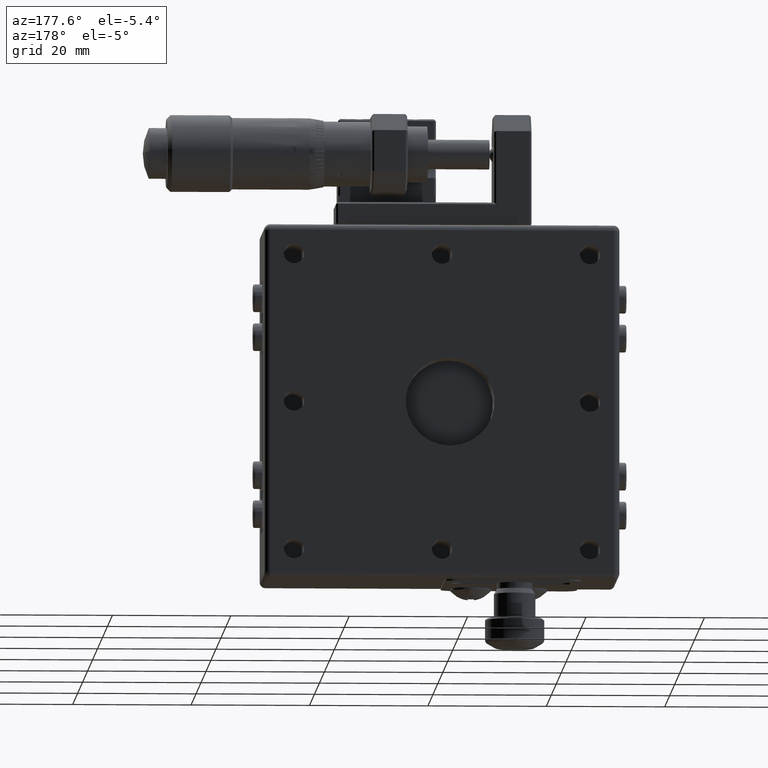
[diagram: clean part render]
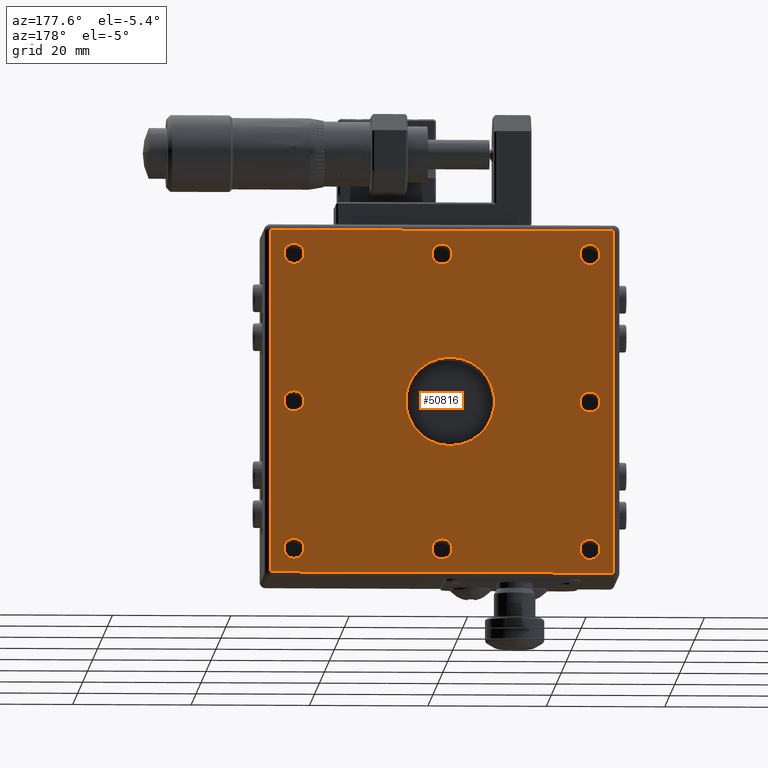
[diagram: same view with one face highlighted and labeled with its STEP entity id]
A machine part, auxiliary view. The second image highlights one B-rep face of the part: STEP entity #50816.
In plain terms, the highlighted planar face has unit normal (0, -1, 0).
Its self-contained STEP definition (entity closure, byte-faithful):
#137 = CIRCLE ( 'NONE', #49938, 1.700000000000000178 ) ;
#349 = CARTESIAN_POINT ( 'NONE',  ( -23.62646566164155004, 9.605938034382809576, 25.00000000000000000 ) ) ;
#635 = DIRECTION ( 'NONE',  ( 0.000000000000000000, 0.000000000000000000, 1.000000000000000000 ) ) ;
#707 = AXIS2_PLACEMENT_3D ( 'NONE', #32310, #15059, #11975 ) ;
#918 = EDGE_CURVE ( 'NONE', #54437, #23549, #35971, .T. ) ;
#1189 = EDGE_CURVE ( 'NONE', #39811, #23739, #15552, .T. ) ;
#1271 = DIRECTION ( 'NONE',  ( 0.000000000000000000, 1.000000000000000000, 0.000000000000000000 ) ) ;
#1383 = CIRCLE ( 'NONE', #50274, 1.699999999999999956 ) ;
#1994 = CARTESIAN_POINT ( 'NONE',  ( 26.37353433835844996, 9.605938034382809576, 25.00000000000000000 ) ) ;
#2213 = EDGE_LOOP ( 'NONE', ( #34079, #38361 ) ) ;
#2896 = VECTOR ( 'NONE', #35086, 1000.000000000000000 ) ;
#3027 = AXIS2_PLACEMENT_3D ( 'NONE', #349, #51854, #635 ) ;
#3776 = EDGE_LOOP ( 'NONE', ( #41812, #49340 ) ) ;
#4143 = EDGE_CURVE ( 'NONE', #20505, #16478, #21745, .T. ) ;
#4193 = EDGE_CURVE ( 'NONE', #13264, #23536, #22354, .T. ) ;
#4675 = ORIENTED_EDGE ( 'NONE', *, *, #24128, .F. ) ;
#4713 = CARTESIAN_POINT ( 'NONE',  ( -23.62646566164155004, 9.605938034382809576, 25.00000000000000000 ) ) ;
#4808 = DIRECTION ( 'NONE',  ( 0.000000000000000000, 0.000000000000000000, -1.000000000000000000 ) ) ;
#5446 = CARTESIAN_POINT ( 'NONE',  ( -27.62646566164155004, 9.605938034382809576, -29.00000000000000000 ) ) ;
#6014 = DIRECTION ( 'NONE',  ( 0.000000000000000000, 0.000000000000000000, 1.000000000000000000 ) ) ;
#6198 = DIRECTION ( 'NONE',  ( 0.000000000000000000, 1.000000000000000000, 0.000000000000000000 ) ) ;
#6304 = FACE_BOUND ( 'NONE', #3776, .T. ) ;
#6330 = AXIS2_PLACEMENT_3D ( 'NONE', #39413, #1271, #14332 ) ;
#6737 = DIRECTION ( 'NONE',  ( 0.000000000000000000, 1.000000000000000000, 0.000000000000000000 ) ) ;
#6760 = DIRECTION ( 'NONE',  ( 0.000000000000000000, 1.000000000000000000, 0.000000000000000000 ) ) ;
#7099 = ORIENTED_EDGE ( 'NONE', *, *, #28105, .F. ) ;
#7270 = CARTESIAN_POINT ( 'NONE',  ( -23.62646566164155004, 9.605938034382809576, -25.00000000000000000 ) ) ;
#7285 = VERTEX_POINT ( 'NONE', #53788 ) ;
#7302 = CARTESIAN_POINT ( 'NONE',  ( 26.37353433835844996, 9.605938034382809576, -7.423069874656028408E-15 ) ) ;
#7761 = ORIENTED_EDGE ( 'NONE', *, *, #43256, .F. ) ;
#8093 = VERTEX_POINT ( 'NONE', #46859 ) ;
#8469 = CARTESIAN_POINT ( 'NONE',  ( 26.37353433835844996, 9.605938034382809576, 23.30000000000000071 ) ) ;
#9800 = DIRECTION ( 'NONE',  ( 0.000000000000000000, 0.000000000000000000, 1.000000000000000000 ) ) ;
#9849 = CARTESIAN_POINT ( 'NONE',  ( -23.62646566164155004, 9.605938034382809576, -7.423069874656028408E-15 ) ) ;
#9955 = CIRCLE ( 'NONE', #26871, 1.700000000000000178 ) ;
#10005 = LINE ( 'NONE', #10289, #2896 ) ;
#10104 = CARTESIAN_POINT ( 'NONE',  ( -23.62646566164155004, 9.605938034382809576, -25.00000000000000000 ) ) ;
#10258 = CARTESIAN_POINT ( 'NONE',  ( -23.62646566164155004, 9.605938034382809576, -1.699999999999999956 ) ) ;
#10289 = CARTESIAN_POINT ( 'NONE',  ( -27.62646566164155004, 9.605938034382809576, 30.00000000000000000 ) ) ;
#11191 = ORIENTED_EDGE ( 'NONE', *, *, #12231, .F. ) ;
#11264 = AXIS2_PLACEMENT_3D ( 'NONE', #35788, #52491, #6014 ) ;
#11950 = AXIS2_PLACEMENT_3D ( 'NONE', #9849, #14044, #22692 ) ;
#11975 = DIRECTION ( 'NONE',  ( 0.000000000000000000, 0.000000000000000000, 1.000000000000000000 ) ) ;
#12026 = CIRCLE ( 'NONE', #22716, 1.700000000000000178 ) ;
#12031 = CARTESIAN_POINT ( 'NONE',  ( -23.62646566164155004, 9.605938034382809576, -23.30000000000000071 ) ) ;
#12080 = DIRECTION ( 'NONE',  ( 0.000000000000000000, 1.000000000000000000, 0.000000000000000000 ) ) ;
#12231 = EDGE_CURVE ( 'NONE', #22247, #17106, #51067, .T. ) ;
#13067 = VERTEX_POINT ( 'NONE', #18266 ) ;
#13074 = DIRECTION ( 'NONE',  ( 0.000000000000000000, 1.000000000000000000, 0.000000000000000000 ) ) ;
#13264 = VERTEX_POINT ( 'NONE', #54113 ) ;
#13382 = EDGE_CURVE ( 'NONE', #53403, #29475, #12026, .T. ) ;
#13578 = FACE_BOUND ( 'NONE', #31570, .T. ) ;
#13881 = EDGE_CURVE ( 'NONE', #23549, #54437, #44948, .T. ) ;
#13891 = ORIENTED_EDGE ( 'NONE', *, *, #918, .F. ) ;
#13944 = DIRECTION ( 'NONE',  ( 1.000000000000000000, 0.000000000000000000, 0.000000000000000000 ) ) ;
#14044 = DIRECTION ( 'NONE',  ( 0.000000000000000000, 1.000000000000000000, 0.000000000000000000 ) ) ;
#14332 = DIRECTION ( 'NONE',  ( 0.000000000000000000, 0.000000000000000000, 1.000000000000000000 ) ) ;
#14415 = EDGE_LOOP ( 'NONE', ( #30930, #23203, #24780, #45045 ) ) ;
#14619 = EDGE_CURVE ( 'NONE', #17757, #44976, #20997, .T. ) ;
#14628 = CARTESIAN_POINT ( 'NONE',  ( -23.62646566164155004, 9.605938034382809576, 26.70000000000000284 ) ) ;
#14695 = DIRECTION ( 'NONE',  ( 0.000000000000000000, 0.000000000000000000, 1.000000000000000000 ) ) ;
#15059 = DIRECTION ( 'NONE',  ( 0.000000000000000000, 1.000000000000000000, 0.000000000000000000 ) ) ;
#15552 = CIRCLE ( 'NONE', #52862, 1.699999999999999956 ) ;
#16127 = VERTEX_POINT ( 'NONE', #23602 ) ;
#16138 = EDGE_LOOP ( 'NONE', ( #4675, #35613 ) ) ;
#16367 = DIRECTION ( 'NONE',  ( 0.000000000000000000, 1.000000000000000000, 0.000000000000000000 ) ) ;
#16478 = VERTEX_POINT ( 'NONE', #14628 ) ;
#16673 = AXIS2_PLACEMENT_3D ( 'NONE', #32220, #49194, #14695 ) ;
#16712 = CIRCLE ( 'NONE', #27414, 1.700000000000000178 ) ;
#17106 = VERTEX_POINT ( 'NONE', #12031 ) ;
#17450 = AXIS2_PLACEMENT_3D ( 'NONE', #35908, #22582, #39559 ) ;
#17757 = VERTEX_POINT ( 'NONE', #38397 ) ;
#18266 = CARTESIAN_POINT ( 'NONE',  ( 26.37353433835844996, 9.605938034382809576, -26.70000000000000284 ) ) ;
#18273 = CIRCLE ( 'NONE', #39620, 1.700000000000000178 ) ;
#18290 = EDGE_CURVE ( 'NONE', #29475, #53403, #16712, .T. ) ;
#18547 = EDGE_CURVE ( 'NONE', #30800, #13264, #31182, .T. ) ;
#18599 = DIRECTION ( 'NONE',  ( 0.000000000000000000, 0.000000000000000000, 1.000000000000000000 ) ) ;
#18711 = DIRECTION ( 'NONE',  ( 0.000000000000000000, 1.000000000000000000, 0.000000000000000000 ) ) ;
#19413 = CARTESIAN_POINT ( 'NONE',  ( 1.373534338358459950, 9.605938034382809576, -25.00000000000000000 ) ) ;
#19539 = DIRECTION ( 'NONE',  ( 0.000000000000000000, 0.000000000000000000, 1.000000000000000000 ) ) ;
#19689 = ORIENTED_EDGE ( 'NONE', *, *, #53219, .F. ) ;
#19768 = CARTESIAN_POINT ( 'NONE',  ( 26.37353433835844996, 9.605938034382809576, 1.699999999999999956 ) ) ;
#19866 = EDGE_CURVE ( 'NONE', #42860, #7285, #50463, .T. ) ;
#20008 = CARTESIAN_POINT ( 'NONE',  ( 30.37353433835844996, 9.605938034382809576, -29.00000000000000000 ) ) ;
#20320 = VECTOR ( 'NONE', #13944, 1000.000000000000000 ) ;
#20505 = VERTEX_POINT ( 'NONE', #26572 ) ;
#20842 = EDGE_CURVE ( 'NONE', #23739, #39811, #1383, .T. ) ;
#20997 = CIRCLE ( 'NONE', #17450, 1.700000000000000178 ) ;
#21682 = DIRECTION ( 'NONE',  ( -1.000000000000000000, 0.000000000000000000, 0.000000000000000000 ) ) ;
#21745 = CIRCLE ( 'NONE', #3027, 1.700000000000000178 ) ;
#21903 = ORIENTED_EDGE ( 'NONE', *, *, #23612, .F. ) ;
#22247 = VERTEX_POINT ( 'NONE', #46494 ) ;
#22354 = LINE ( 'NONE', #22637, #45729 ) ;
#22385 = DIRECTION ( 'NONE',  ( 0.000000000000000000, 0.000000000000000000, 1.000000000000000000 ) ) ;
#22582 = DIRECTION ( 'NONE',  ( 0.000000000000000000, 1.000000000000000000, 0.000000000000000000 ) ) ;
#22616 = DIRECTION ( 'NONE',  ( 0.000000000000000000, 1.000000000000000000, 0.000000000000000000 ) ) ;
#22637 = CARTESIAN_POINT ( 'NONE',  ( 30.37353433835844996, 9.605938034382809576, -30.00000000000000000 ) ) ;
#22692 = DIRECTION ( 'NONE',  ( 0.000000000000000000, 0.000000000000000000, 1.000000000000000000 ) ) ;
#22716 = AXIS2_PLACEMENT_3D ( 'NONE', #28798, #12080, #29085 ) ;
#22788 = PLANE ( 'NONE',  #32280 ) ;
#23203 = ORIENTED_EDGE ( 'NONE', *, *, #18547, .T. ) ;
#23467 = ORIENTED_EDGE ( 'NONE', *, *, #33670, .F. ) ;
#23536 = VERTEX_POINT ( 'NONE', #20008 ) ;
#23549 = VERTEX_POINT ( 'NONE', #33625 ) ;
#23602 = CARTESIAN_POINT ( 'NONE',  ( 1.373534338358459950, 9.605938034382809576, 26.70000000000000284 ) ) ;
#23612 = EDGE_CURVE ( 'NONE', #7285, #42860, #26191, .T. ) ;
#23739 = VERTEX_POINT ( 'NONE', #19768 ) ;
#24128 = EDGE_CURVE ( 'NONE', #16478, #20505, #9955, .T. ) ;
#24296 = DIRECTION ( 'NONE',  ( 0.000000000000000000, 0.000000000000000000, 1.000000000000000000 ) ) ;
#24444 = EDGE_LOOP ( 'NONE', ( #35328, #13891 ) ) ;
#24780 = ORIENTED_EDGE ( 'NONE', *, *, #4193, .T. ) ;
#25036 = CIRCLE ( 'NONE', #6330, 1.700000000000000178 ) ;
#26191 = CIRCLE ( 'NONE', #33285, 7.500000000000000000 ) ;
#26572 = CARTESIAN_POINT ( 'NONE',  ( -23.62646566164155004, 9.605938034382809576, 23.30000000000000071 ) ) ;
#26674 = FACE_BOUND ( 'NONE', #30667, .T. ) ;
#26871 = AXIS2_PLACEMENT_3D ( 'NONE', #4713, #13074, #30318 ) ;
#27414 = AXIS2_PLACEMENT_3D ( 'NONE', #1994, #6737, #19539 ) ;
#27614 = EDGE_CURVE ( 'NONE', #23536, #52902, #30577, .T. ) ;
#27811 = EDGE_CURVE ( 'NONE', #44976, #17757, #137, .T. ) ;
#28105 = EDGE_CURVE ( 'NONE', #16127, #8093, #25036, .T. ) ;
#28673 = EDGE_LOOP ( 'NONE', ( #7099, #23467 ) ) ;
#28798 = CARTESIAN_POINT ( 'NONE',  ( 26.37353433835844996, 9.605938034382809576, 25.00000000000000000 ) ) ;
#29085 = DIRECTION ( 'NONE',  ( 0.000000000000000000, 0.000000000000000000, 1.000000000000000000 ) ) ;
#29475 = VERTEX_POINT ( 'NONE', #8469 ) ;
#30318 = DIRECTION ( 'NONE',  ( 0.000000000000000000, 0.000000000000000000, 1.000000000000000000 ) ) ;
#30559 = EDGE_LOOP ( 'NONE', ( #7761, #43381 ) ) ;
#30573 = DIRECTION ( 'NONE',  ( 0.000000000000000000, -1.000000000000000000, 0.000000000000000000 ) ) ;
#30577 = LINE ( 'NONE', #47570, #38382 ) ;
#30667 = EDGE_LOOP ( 'NONE', ( #21903, #51882 ) ) ;
#30800 = VERTEX_POINT ( 'NONE', #47449 ) ;
#30855 = FACE_BOUND ( 'NONE', #2213, .T. ) ;
#30930 = ORIENTED_EDGE ( 'NONE', *, *, #49740, .T. ) ;
#30959 = CARTESIAN_POINT ( 'NONE',  ( 26.37353433835844996, 9.605938034382809576, -7.423069874656028408E-15 ) ) ;
#31112 = FACE_BOUND ( 'NONE', #30559, .T. ) ;
#31182 = LINE ( 'NONE', #52083, #20320 ) ;
#31570 = EDGE_LOOP ( 'NONE', ( #19689, #11191 ) ) ;
#32220 = CARTESIAN_POINT ( 'NONE',  ( 0.000000000000000000, 9.605938034382809576, 0.000000000000000000 ) ) ;
#32280 = AXIS2_PLACEMENT_3D ( 'NONE', #52010, #30573, #51723 ) ;
#32287 = CIRCLE ( 'NONE', #34082, 1.700000000000000178 ) ;
#32310 = CARTESIAN_POINT ( 'NONE',  ( 26.37353433835844996, 9.605938034382809576, -25.00000000000000000 ) ) ;
#32337 = DIRECTION ( 'NONE',  ( 0.000000000000000000, 0.000000000000000000, 1.000000000000000000 ) ) ;
#33037 = VERTEX_POINT ( 'NONE', #52938 ) ;
#33285 = AXIS2_PLACEMENT_3D ( 'NONE', #54489, #16367, #33348 ) ;
#33348 = DIRECTION ( 'NONE',  ( 0.000000000000000000, 0.000000000000000000, 1.000000000000000000 ) ) ;
#33455 = ORIENTED_EDGE ( 'NONE', *, *, #14619, .F. ) ;
#33614 = CIRCLE ( 'NONE', #707, 1.700000000000000178 ) ;
#33625 = CARTESIAN_POINT ( 'NONE',  ( -23.62646566164155004, 9.605938034382809576, 1.699999999999999956 ) ) ;
#33670 = EDGE_CURVE ( 'NONE', #8093, #16127, #40655, .T. ) ;
#34079 = ORIENTED_EDGE ( 'NONE', *, *, #13382, .F. ) ;
#34082 = AXIS2_PLACEMENT_3D ( 'NONE', #47966, #18711, #9800 ) ;
#34573 = CARTESIAN_POINT ( 'NONE',  ( 26.37353433835844996, 9.605938034382809576, 26.70000000000000284 ) ) ;
#34741 = FACE_BOUND ( 'NONE', #46008, .T. ) ;
#35086 = DIRECTION ( 'NONE',  ( 0.000000000000000000, 0.000000000000000000, 1.000000000000000000 ) ) ;
#35182 = EDGE_CURVE ( 'NONE', #13067, #33037, #33614, .T. ) ;
#35274 = CARTESIAN_POINT ( 'NONE',  ( 26.37353433835844996, 9.605938034382809576, -1.699999999999999956 ) ) ;
#35328 = ORIENTED_EDGE ( 'NONE', *, *, #13881, .F. ) ;
#35613 = ORIENTED_EDGE ( 'NONE', *, *, #4143, .F. ) ;
#35788 = CARTESIAN_POINT ( 'NONE',  ( 1.373534338358459950, 9.605938034382809576, 25.00000000000000000 ) ) ;
#35842 = CARTESIAN_POINT ( 'NONE',  ( -23.62646566164155004, 9.605938034382809576, -7.423069874656028408E-15 ) ) ;
#35908 = CARTESIAN_POINT ( 'NONE',  ( 1.373534338358459950, 9.605938034382809576, -25.00000000000000000 ) ) ;
#35971 = CIRCLE ( 'NONE', #11950, 1.699999999999999956 ) ;
#38361 = ORIENTED_EDGE ( 'NONE', *, *, #18290, .F. ) ;
#38382 = VECTOR ( 'NONE', #21682, 1000.000000000000000 ) ;
#38397 = CARTESIAN_POINT ( 'NONE',  ( 1.373534338358459950, 9.605938034382809576, -23.30000000000000071 ) ) ;
#39413 = CARTESIAN_POINT ( 'NONE',  ( 1.373534338358459950, 9.605938034382809576, 25.00000000000000000 ) ) ;
#39475 = FACE_BOUND ( 'NONE', #28673, .T. ) ;
#39559 = DIRECTION ( 'NONE',  ( 0.000000000000000000, 0.000000000000000000, 1.000000000000000000 ) ) ;
#39620 = AXIS2_PLACEMENT_3D ( 'NONE', #10104, #6198, #22385 ) ;
#39811 = VERTEX_POINT ( 'NONE', #35274 ) ;
#40655 = CIRCLE ( 'NONE', #11264, 1.700000000000000178 ) ;
#41812 = ORIENTED_EDGE ( 'NONE', *, *, #20842, .F. ) ;
#42169 = AXIS2_PLACEMENT_3D ( 'NONE', #7270, #45423, #32337 ) ;
#42860 = VERTEX_POINT ( 'NONE', #48952 ) ;
#43256 = EDGE_CURVE ( 'NONE', #33037, #13067, #32287, .T. ) ;
#43381 = ORIENTED_EDGE ( 'NONE', *, *, #35182, .F. ) ;
#43647 = FACE_BOUND ( 'NONE', #24444, .T. ) ;
#44948 = CIRCLE ( 'NONE', #49394, 1.699999999999999956 ) ;
#44976 = VERTEX_POINT ( 'NONE', #45974 ) ;
#45038 = DIRECTION ( 'NONE',  ( 0.000000000000000000, 0.000000000000000000, 1.000000000000000000 ) ) ;
#45045 = ORIENTED_EDGE ( 'NONE', *, *, #27614, .T. ) ;
#45423 = DIRECTION ( 'NONE',  ( 0.000000000000000000, 1.000000000000000000, 0.000000000000000000 ) ) ;
#45729 = VECTOR ( 'NONE', #4808, 1000.000000000000000 ) ;
#45974 = CARTESIAN_POINT ( 'NONE',  ( 1.373534338358459950, 9.605938034382809576, -26.70000000000000284 ) ) ;
#46008 = EDGE_LOOP ( 'NONE', ( #33455, #50780 ) ) ;
#46494 = CARTESIAN_POINT ( 'NONE',  ( -23.62646566164155004, 9.605938034382809576, -26.70000000000000284 ) ) ;
#46859 = CARTESIAN_POINT ( 'NONE',  ( 1.373534338358459950, 9.605938034382809576, 23.30000000000000071 ) ) ;
#47449 = CARTESIAN_POINT ( 'NONE',  ( -27.62646566164155004, 9.605938034382809576, 29.00000000000000000 ) ) ;
#47565 = FACE_BOUND ( 'NONE', #16138, .T. ) ;
#47570 = CARTESIAN_POINT ( 'NONE',  ( 31.37353433835844640, 9.605938034382809576, -29.00000000000000000 ) ) ;
#47948 = DIRECTION ( 'NONE',  ( 0.000000000000000000, 0.000000000000000000, 1.000000000000000000 ) ) ;
#47966 = CARTESIAN_POINT ( 'NONE',  ( 26.37353433835844996, 9.605938034382809576, -25.00000000000000000 ) ) ;
#48101 = FACE_OUTER_BOUND ( 'NONE', #14415, .T. ) ;
#48952 = CARTESIAN_POINT ( 'NONE',  ( 9.184850993605140056E-16, 9.605938034382809576, -7.500000000000000000 ) ) ;
#49194 = DIRECTION ( 'NONE',  ( 0.000000000000000000, 1.000000000000000000, 0.000000000000000000 ) ) ;
#49340 = ORIENTED_EDGE ( 'NONE', *, *, #1189, .F. ) ;
#49394 = AXIS2_PLACEMENT_3D ( 'NONE', #35842, #52824, #45038 ) ;
#49740 = EDGE_CURVE ( 'NONE', #52902, #30800, #10005, .T. ) ;
#49938 = AXIS2_PLACEMENT_3D ( 'NONE', #19413, #53344, #18599 ) ;
#50274 = AXIS2_PLACEMENT_3D ( 'NONE', #7302, #6760, #24296 ) ;
#50463 = CIRCLE ( 'NONE', #16673, 7.500000000000000000 ) ;
#50780 = ORIENTED_EDGE ( 'NONE', *, *, #27811, .F. ) ;
#50816 = ADVANCED_FACE ( 'NONE', ( #26674, #13578, #43647, #47565, #39475, #30855, #6304, #31112, #34741, #48101 ), #22788, .F. ) ;
#51067 = CIRCLE ( 'NONE', #42169, 1.700000000000000178 ) ;
#51723 = DIRECTION ( 'NONE',  ( 0.000000000000000000, 0.000000000000000000, -1.000000000000000000 ) ) ;
#51854 = DIRECTION ( 'NONE',  ( 0.000000000000000000, 1.000000000000000000, 0.000000000000000000 ) ) ;
#51882 = ORIENTED_EDGE ( 'NONE', *, *, #19866, .F. ) ;
#52010 = CARTESIAN_POINT ( 'NONE',  ( 31.37353433835844640, 9.605938034382809576, 30.00000000000000000 ) ) ;
#52083 = CARTESIAN_POINT ( 'NONE',  ( 31.37353433835844640, 9.605938034382809576, 29.00000000000000000 ) ) ;
#52491 = DIRECTION ( 'NONE',  ( 0.000000000000000000, 1.000000000000000000, 0.000000000000000000 ) ) ;
#52824 = DIRECTION ( 'NONE',  ( 0.000000000000000000, 1.000000000000000000, 0.000000000000000000 ) ) ;
#52862 = AXIS2_PLACEMENT_3D ( 'NONE', #30959, #22616, #47948 ) ;
#52902 = VERTEX_POINT ( 'NONE', #5446 ) ;
#52938 = CARTESIAN_POINT ( 'NONE',  ( 26.37353433835844996, 9.605938034382809576, -23.30000000000000071 ) ) ;
#53219 = EDGE_CURVE ( 'NONE', #17106, #22247, #18273, .T. ) ;
#53344 = DIRECTION ( 'NONE',  ( 0.000000000000000000, 1.000000000000000000, 0.000000000000000000 ) ) ;
#53403 = VERTEX_POINT ( 'NONE', #34573 ) ;
#53788 = CARTESIAN_POINT ( 'NONE',  ( 0.000000000000000000, 9.605938034382809576, 7.500000000000000000 ) ) ;
#54113 = CARTESIAN_POINT ( 'NONE',  ( 30.37353433835844996, 9.605938034382809576, 29.00000000000000000 ) ) ;
#54437 = VERTEX_POINT ( 'NONE', #10258 ) ;
#54489 = CARTESIAN_POINT ( 'NONE',  ( 0.000000000000000000, 9.605938034382809576, 0.000000000000000000 ) ) ;